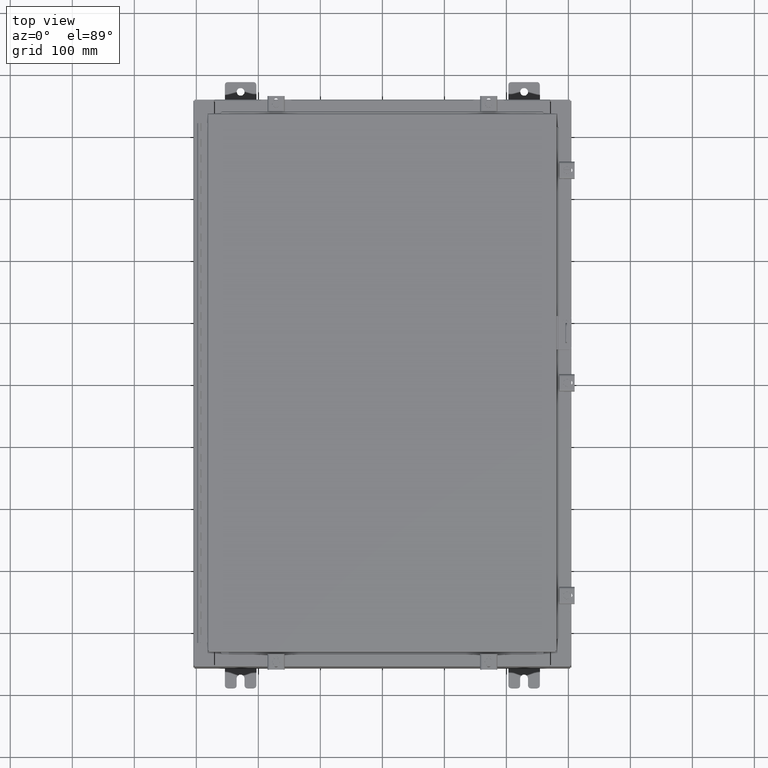
[diagram: clean part render]
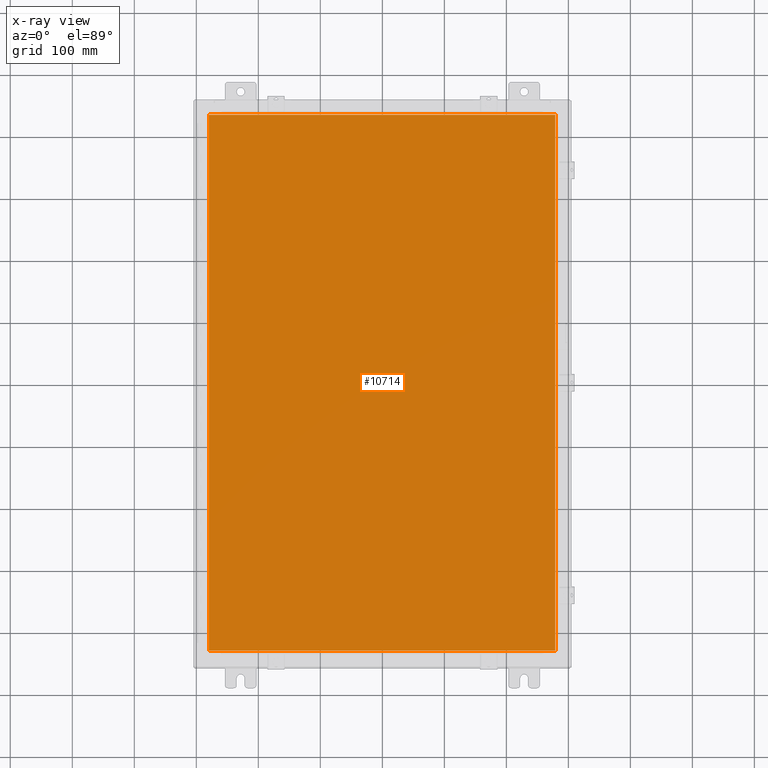
[diagram: x-ray — body ghosted, one internal face saturated and labeled with its STEP entity id]
A machine part, top view, then the same camera in x-ray: the body is ghosted and one INTERNAL B-rep face — a face not visible from any outside direction — is saturated and labeled: STEP entity #10714.
In plain terms, the highlighted planar face has unit normal (0, 0, -1).
Its self-contained STEP definition (entity closure, byte-faithful):
#397 = VERTEX_POINT ( 'NONE', #5945 ) ;
#3749 = VECTOR ( 'NONE', #18226, 39.37007874015748100 ) ;
#4880 = VERTEX_POINT ( 'NONE', #26190 ) ;
#5407 = ORIENTED_EDGE ( 'NONE', *, *, #31695, .F. ) ;
#5945 = CARTESIAN_POINT ( 'NONE',  ( -10.99030000000000000, -17.00629999999999600, -0.07470000000000000300 ) ) ;
#5951 = DIRECTION ( 'NONE',  ( 0.0000000000000000000, 1.000000000000000000, 0.0000000000000000000 ) ) ;
#7873 = DIRECTION ( 'NONE',  ( 0.0000000000000000000, 0.0000000000000000000, -1.000000000000000000 ) ) ;
#8753 = DIRECTION ( 'NONE',  ( 1.000000000000000000, -0.0000000000000000000, -0.0000000000000000000 ) ) ;
#9316 = ORIENTED_EDGE ( 'NONE', *, *, #36798, .F. ) ;
#10209 = DIRECTION ( 'NONE',  ( -1.000000000000000000, -0.0000000000000000000, -0.0000000000000000000 ) ) ;
#10320 = LINE ( 'NONE', #21661, #26603 ) ;
#10325 = FACE_OUTER_BOUND ( 'NONE', #35363, .T. ) ;
#10431 = CARTESIAN_POINT ( 'NONE',  ( 10.99029999999999600, 17.00630000000000700, -0.07470000000000000300 ) ) ;
#10714 = ADVANCED_FACE ( 'NONE', ( #10325 ), #17626, .T. ) ;
#10752 = VERTEX_POINT ( 'NONE', #27468 ) ;
#11984 = VECTOR ( 'NONE', #10209, 39.37007874015748100 ) ;
#13254 = VERTEX_POINT ( 'NONE', #10431 ) ;
#16721 = CARTESIAN_POINT ( 'NONE',  ( 10.99029999999999800, 17.00630000000000700, -0.07470000000000019700 ) ) ;
#17626 = PLANE ( 'NONE',  #25691 ) ;
#18226 = DIRECTION ( 'NONE',  ( 0.0000000000000000000, -1.000000000000000000, 0.0000000000000000000 ) ) ;
#19274 = ORIENTED_EDGE ( 'NONE', *, *, #41945, .F. ) ;
#19373 = VECTOR ( 'NONE', #5951, 39.37007874015748100 ) ;
#19567 = LINE ( 'NONE', #16721, #11984 ) ;
#20926 = DIRECTION ( 'NONE',  ( -1.000000000000000000, 0.0000000000000000000, -0.0000000000000000000 ) ) ;
#21014 = LINE ( 'NONE', #41002, #3749 ) ;
#21661 = CARTESIAN_POINT ( 'NONE',  ( -10.99030000000000000, -17.00629999999999600, -0.07469999999999910000 ) ) ;
#23457 = ORIENTED_EDGE ( 'NONE', *, *, #36829, .F. ) ;
#25389 = CARTESIAN_POINT ( 'NONE',  ( 10.99029999999999600, -17.00629999999999200, -0.07470000000000019700 ) ) ;
#25691 = AXIS2_PLACEMENT_3D ( 'NONE', #33877, #7873, #20926 ) ;
#26190 = CARTESIAN_POINT ( 'NONE',  ( 10.99029999999999600, -17.00629999999999600, -0.07470000000000000300 ) ) ;
#26603 = VECTOR ( 'NONE', #8753, 39.37007874015748100 ) ;
#27046 = LINE ( 'NONE', #25389, #19373 ) ;
#27468 = CARTESIAN_POINT ( 'NONE',  ( -10.99030000000000100, 17.00630000000000700, -0.07470000000000000300 ) ) ;
#31695 = EDGE_CURVE ( 'NONE', #13254, #10752, #19567, .T. ) ;
#33877 = CARTESIAN_POINT ( 'NONE',  ( 0.0000000000000000000, 0.0000000000000000000, -0.07470000000000000300 ) ) ;
#35363 = EDGE_LOOP ( 'NONE', ( #19274, #23457, #9316, #5407 ) ) ;
#36798 = EDGE_CURVE ( 'NONE', #10752, #397, #21014, .T. ) ;
#36829 = EDGE_CURVE ( 'NONE', #397, #4880, #10320, .T. ) ;
#41002 = CARTESIAN_POINT ( 'NONE',  ( -10.99030000000000500, 17.00630000000000700, -0.07470000000000347200 ) ) ;
#41945 = EDGE_CURVE ( 'NONE', #4880, #13254, #27046, .T. ) ;